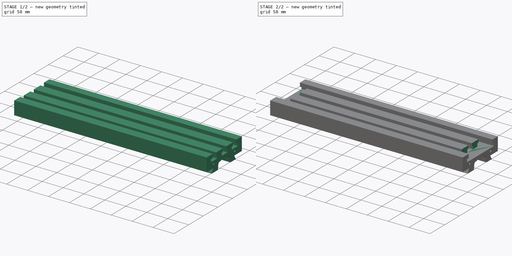
[diagram: build sequence overview — one tinted view per stage of 2, left to right]
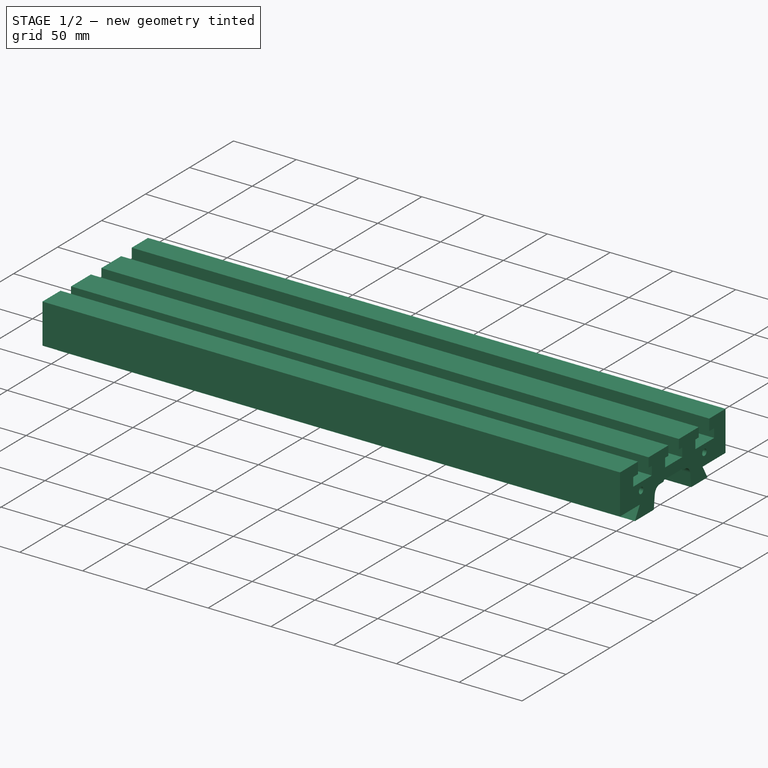
[diagram: stage 1 of 2 — iso view after this stage's code; geometry added in this stage tinted green]
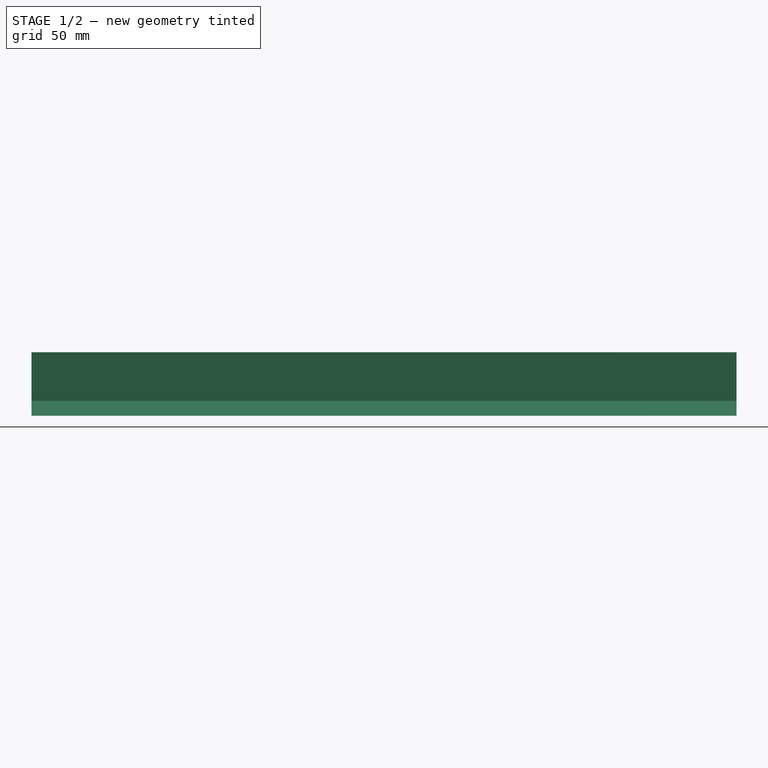
[diagram: stage 1 of 2 — front view after this stage's code; geometry added in this stage tinted green]
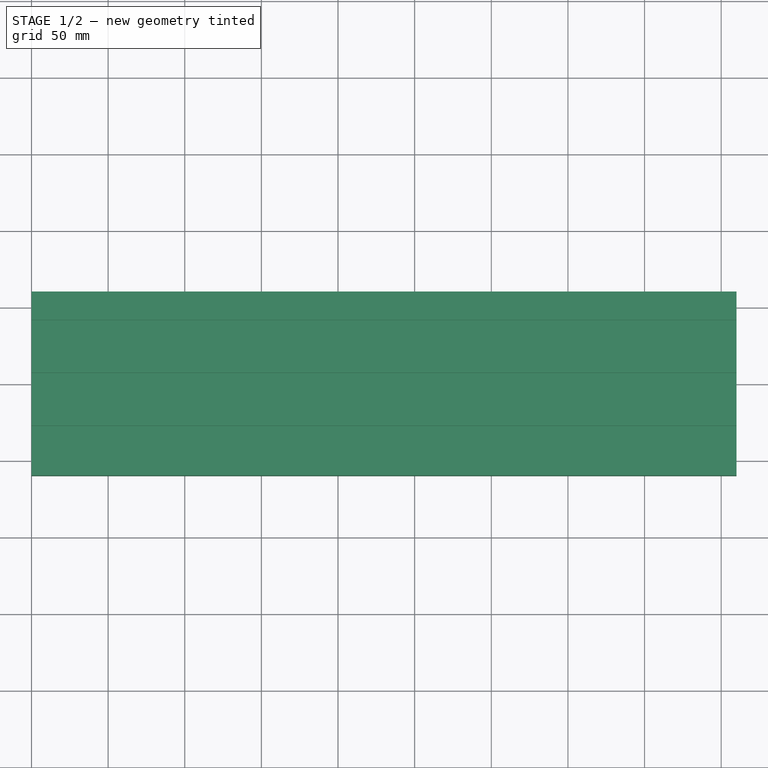
[diagram: stage 1 of 2 — top view after this stage's code; geometry added in this stage tinted green]
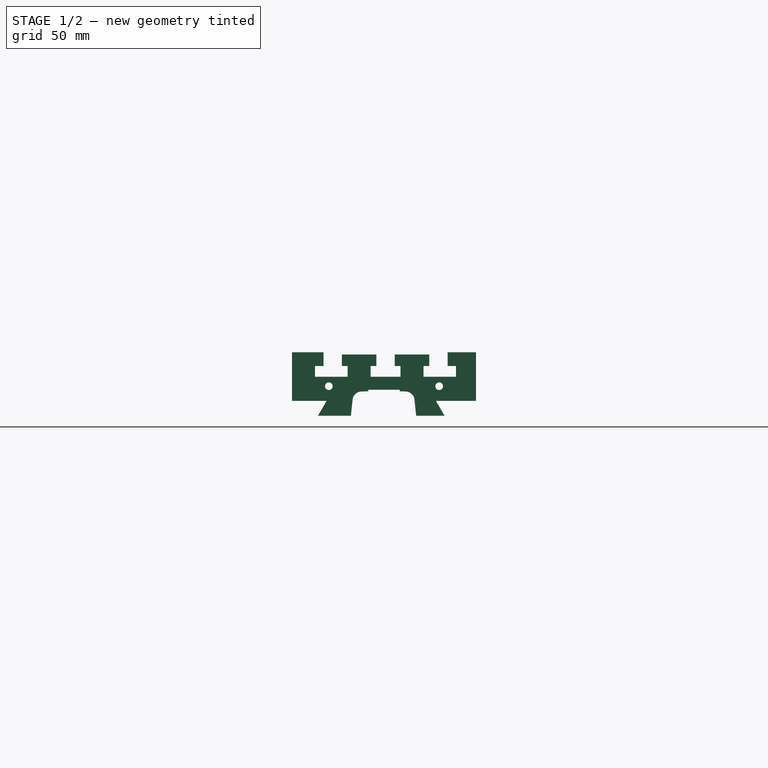
[diagram: stage 1 of 2 — right view after this stage's code; geometry added in this stage tinted green]
FCSTD DOCUMENT  (FreeCAD 0.16R5470 (Git))
Label: Bed-132
License: CreativeCommons Attribution-ShareAlike
LicenseURL: http://creativecommons.org/licenses/by-sa/4.0/
objects: Sketcher::SketchObject×2, PartDesign::Pad×1, PartDesign::Pocket×1
note: 6 computed .brp shape members not serialized (recipe doc carries the construction recipe); baked Part::Feature solids carry a one-line shape summary decoded from their .brp

FEATURE [Sketcher::SketchObject] Sketch
  Placement = pos=(0,0,0) rot=(0.57735,0.57735,0.57735;2.0944rad)
  sketch-geometry (44):
    g0: LineSegment StartX=-43.1 StartY=0 StartZ=0 EndX=-37.4593 EndY=9.77 EndZ=0
    g1: LineSegment StartX=-37.4593 StartY=9.77 StartZ=0 EndX=-60 EndY=9.77 EndZ=0
    g2: LineSegment StartX=-60 StartY=9.77 StartZ=0 EndX=-60 EndY=41.5 EndZ=0
    g3: LineSegment StartX=-60 StartY=41.5 StartZ=0 EndX=-39.5 EndY=41.5 EndZ=0
    g4: LineSegment StartX=-39.5 StartY=41.5 StartZ=0 EndX=-39.5 EndY=32.5 EndZ=0
    g5: LineSegment StartX=-39.5 StartY=32.5 StartZ=0 EndX=-45 EndY=32.5 EndZ=0
    g6: LineSegment StartX=-45 StartY=32.5 StartZ=0 EndX=-45 EndY=25.5 EndZ=0
    g7: LineSegment StartX=-45 StartY=25.5 StartZ=0 EndX=-23.75 EndY=25.5 EndZ=0
    g8: LineSegment StartX=-23.75 StartY=25.5 StartZ=0 EndX=-23.75 EndY=32.5 EndZ=0
    g9: LineSegment StartX=-23.75 StartY=32.5 StartZ=0 EndX=-27.5 EndY=32.5 EndZ=0
    g10: LineSegment StartX=-27.5 StartY=32.5 StartZ=0 EndX=-27.5 EndY=40 EndZ=0
    g11: LineSegment StartX=-27.5 StartY=40 StartZ=0 EndX=-5 EndY=40 EndZ=0
    g12: LineSegment StartX=-5 StartY=40 StartZ=0 EndX=-5 EndY=32.5 EndZ=0
    g13: LineSegment StartX=-5 StartY=32.5 StartZ=0 EndX=-8.75 EndY=32.5 EndZ=0
    g14: LineSegment StartX=-8.75 StartY=32.5 StartZ=0 EndX=-8.75 EndY=25.5 EndZ=0
    g15: LineSegment StartX=-8.75 StartY=25.5 StartZ=0 EndX=10.75 EndY=25.5 EndZ=0
    g16: LineSegment StartX=10.75 StartY=25.5 StartZ=0 EndX=10.75 EndY=32.5 EndZ=0
    g17: LineSegment StartX=7 StartY=32.5 StartZ=0 EndX=7 EndY=40 EndZ=0
    g18: LineSegment StartX=7 StartY=40 StartZ=0 EndX=29.5 EndY=40 EndZ=0
    g19: LineSegment StartX=29.5 StartY=40 StartZ=0 EndX=29.5 EndY=32.5 EndZ=0
    g20: LineSegment StartX=29.5 StartY=32.5 StartZ=0 EndX=25.75 EndY=32.5 EndZ=0
    g21: LineSegment StartX=25.75 StartY=32.5 StartZ=0 EndX=25.75 EndY=25.5 EndZ=0
    g22: LineSegment StartX=25.75 StartY=25.5 StartZ=0 EndX=47 EndY=25.5 EndZ=0
    g23: LineSegment StartX=47 StartY=25.5 StartZ=0 EndX=47 EndY=32.5 EndZ=0
    g24: LineSegment StartX=47 StartY=32.5 StartZ=0 EndX=41.5 EndY=32.5 EndZ=0
    g25: LineSegment StartX=41.5 StartY=32.5 StartZ=0 EndX=41.5 EndY=41.5 EndZ=0
    g26: LineSegment StartX=41.5 StartY=41.5 StartZ=0 EndX=60 EndY=41.5 EndZ=0
    g27: LineSegment StartX=60 StartY=41.5 StartZ=0 EndX=60 EndY=9.77 EndZ=0
    g28: LineSegment StartX=60 StartY=9.77 StartZ=0 EndX=33.8593 EndY=9.77 EndZ=0
    g29: LineSegment StartX=33.8593 StartY=9.77 StartZ=0 EndX=39.5 EndY=0 EndZ=0
    g30: LineSegment StartX=39.5 StartY=0 StartZ=0 EndX=21 EndY=0 EndZ=0
    g31: LineSegment StartX=10.25 StartY=16 StartZ=0 EndX=10.25 EndY=17 EndZ=0
    g32: LineSegment StartX=10.25 StartY=17 StartZ=0 EndX=-10.25 EndY=17 EndZ=0
    g33: LineSegment StartX=-10.25 StartY=17 StartZ=0 EndX=-10.25 EndY=16 EndZ=0
    g34: LineSegment StartX=-21.6 StartY=0 StartZ=0 EndX=-43.1 EndY=0 EndZ=0
    g35: LineSegment StartX=7 StartY=32.5 StartZ=0 EndX=10.75 EndY=32.5 EndZ=0
    g36: LineSegment StartX=-21.6 StartY=0 StartZ=0 EndX=-20.4439 EndY=11 EndZ=0
    g37: ArcOfCircle CenterX=-14.5516 CenterY=9.8679 CenterZ=0 NormalX=0 NormalY=0 NormalZ=1 Radius=6 StartAngle=1.5205 EndAngle=2.95177
    g38: LineSegment StartX=-14.25 StartY=15.8603 StartZ=0 EndX=-10.25 EndY=16 EndZ=0
    g39: LineSegment StartX=10.25 StartY=16 StartZ=0 EndX=14.25 EndY=15.8603 EndZ=0
    g40: ArcOfCircle CenterX=13.9517 CenterY=9.86774 CenterZ=0 NormalX=0 NormalY=0 NormalZ=1 Radius=6 StartAngle=0.189849 EndAngle=1.52105
    g41: LineSegment StartX=19.8439 StartY=11 StartZ=0 EndX=21 EndY=0 EndZ=0
    g42: Circle CenterX=36 CenterY=19.3 CenterZ=0 NormalX=0 NormalY=0 NormalZ=1 Radius=2.5
    g43: Circle CenterX=-36 CenterY=19.3 CenterZ=0 NormalX=0 NormalY=0 NormalZ=1 Radius=2.5
  constraints (133):
    c: Coincident(g0,g1)
    c: Horizontal(g1)
    c: Coincident(g1,g2)
    c: Vertical(g2)
    c: Coincident(g2,g3)
    c: Horizontal(g3)
    c: Coincident(g3,g4)
    c: Coincident(g4,g5)
    c: Horizontal(g5)
    c: Coincident(g5,g6)
    c: Vertical(g6)
    c: Coincident(g6,g7)
    c: Horizontal(g7)
    c: Coincident(g7,g8)
    c: Vertical(g8)
    c: Coincident(g8,g9)
    c: Horizontal(g9)
    c: Coincident(g9,g10)
    c: Vertical(g10)
    c: Coincident(g10,g11)
    c: Horizontal(g11)
    c: Coincident(g11,g12)
    c: Vertical(g12)
    c: Coincident(g12,g13)
    c: Horizontal(g13)
    c: Coincident(g13,g14)
    c: Vertical(g14)
    c: Coincident(g14,g15)
    c: Horizontal(g15)
    c: Coincident(g15,g16)
    c: Vertical(g16)
    c: Vertical(g17)
    c: Coincident(g17,g18)
    c: Horizontal(g18)
    c: Coincident(g18,g19)
    c: Vertical(g19)
    c: Coincident(g19,g20)
    c: Coincident(g20,g21)
    c: Vertical(g21)
    c: Coincident(g21,g22)
    c: Horizontal(g22)
    c: Coincident(g22,g23)
    c: Vertical(g23)
    c: Coincident(g23,g24)
    c: Coincident(g24,g25)
    c: Vertical(g25)
    c: Coincident(g25,g26)
    c: Horizontal(g26)
    c: Coincident(g26,g27)
    c: Vertical(g27)
    c: Coincident(g27,g28)
    c: Horizontal(g28)
    c: Coincident(g28,g29)
    c: Coincident(g29,g30)
    c: PointOnObject(g30,g-1)
    c: Horizontal(g30)
    c: Vertical(g31)
    c: Coincident(g31,g32)
    c: Horizontal(g32)
    c: Coincident(g32,g33)
    c: PointOnObject(g34,g-1)
    c: Horizontal(g34)
    c: Coincident(g0,g34)
    c: DistanceX(g2,g26) = 120
    c: Symmetric(g2,g26,g-2)
    c: DistanceY(g1,g0) = -9.77
    c: Vertical(g33)
    c: DistanceY(g0,g2) = 41.5
    c: DistanceY(g29,g27) = 9.77
    c: Vertical(g4)
    c: Horizontal(g20)
    c: Horizontal(g24)
    c: Equal(g6,g8)
    c: Equal(g14,g16)
    c: Equal(g21,g23)
    c: Equal(g5,g24)
    c: DistanceY(g29,g18) = 40
    c: Equal(g7,g22)
    c: Coincident(g35,g17)
    c: Coincident(g16,g35)
    c: Horizontal(g35)
    c: DistanceX(g1,g6) = 15
    c: DistanceY(g24,g25) = 9
    c: DistanceX(g10,g11) = 22.5
    c: Equal(g4,g25)
    c: Equal(g10,g12)
    c: Equal(g17,g19)
    c: Equal(g9,g13)
    c: DistanceX(g17,g18) = 22.5
    c: DistanceX(g11,g17) = 12
    c: Equal(g8,g14)
    c: Equal(g16,g21)
    c: DistanceX(g18,g25) = 12
    c: DistanceY(g22,g23) = 7
    c: Angle(g1,g0) = 1.0472
    c: Angle(g29,g28) = 1.0472
    c: Equal(g35,g20)
    c: DistanceX(g2,g3) = 20.5
    c: DistanceX(g8,g13) = 15
    c: Symmetric(g32,g31,g-2)
    c: DistanceX(g3,g10) = 12
    c: DistanceX(g0,g29) = 82.6
    c: DistanceX(g0,g34) = 21.5
    c: DistanceX(g32,g31) = 20.5
    c: DistanceY(g31,g31) = 1
    c: Equal(g31,g33)
    c: DistanceY(g32,g34) = -17
    c: DistanceY(g34,g10) = 40
    c: Coincident(g38,g33)
    c: Coincident(g38,g37)
    c: Coincident(g36,g37)
    c: Coincident(g34,g36)
    c: Radius(g37) = 6
    c: Angle(g36,g34) = 1.67552
    c: DistanceY(g36,g34) = -11
    c: Angle(g33,g38) = 1.6057
    c: DistanceX(g37,g33) = 4
    c: Equal(g37,g40)
    c: Coincident(g31,g39)
    c: Coincident(g39,g40)
    c: Coincident(g40,g41)
    c: Coincident(g30,g41)
    c: Equal(g41,g36)
    c: Angle(g30,g41) = 1.67552
    c: Equal(g39,g38)
    c: Angle(g39,g31) = 1.6057
    c: DistanceX(g1,g0) = 16.9
    c: DistanceX(g30,g29) = 18.5
    c: DistanceX(g43,g42) = 72
    c: Equal(g43,g42)
    c: DistanceY(g43,g0) = -19.3
    c: Radius(g43) = 2.5
    c: Symmetric(g43,g42,g-2)
FEATURE [PartDesign::Pad] Pad
  Length = 460
  Length2 = 100
  Placement = pos=(0,0,0) rot=(0.57735,0.57735,0.57735;2.0944rad)
  Sketch = -> Sketch
  Type = 0
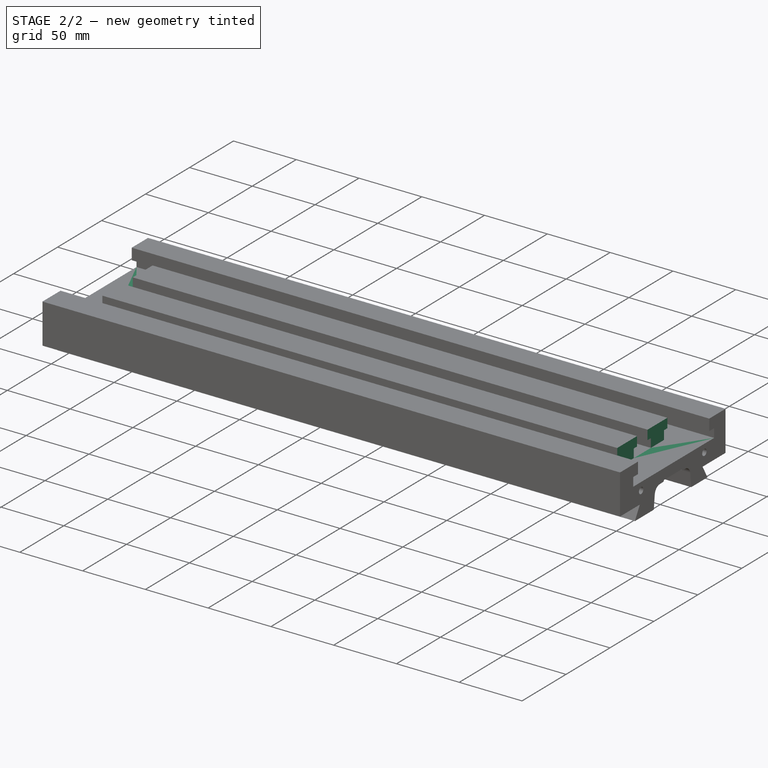
[diagram: stage 2 of 2 — iso view after this stage's code; geometry added in this stage tinted green]
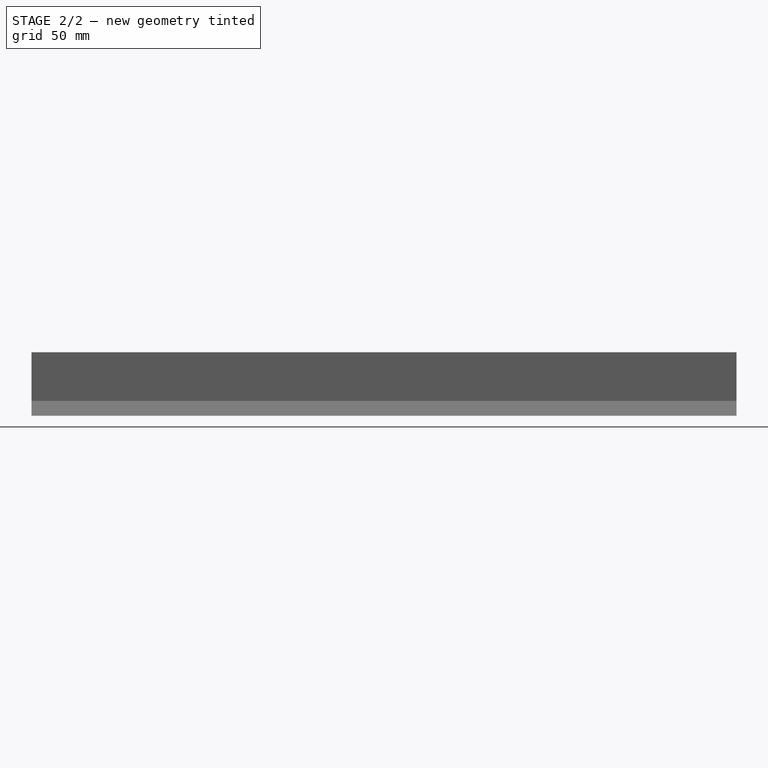
[diagram: stage 2 of 2 — front view after this stage's code; geometry added in this stage tinted green]
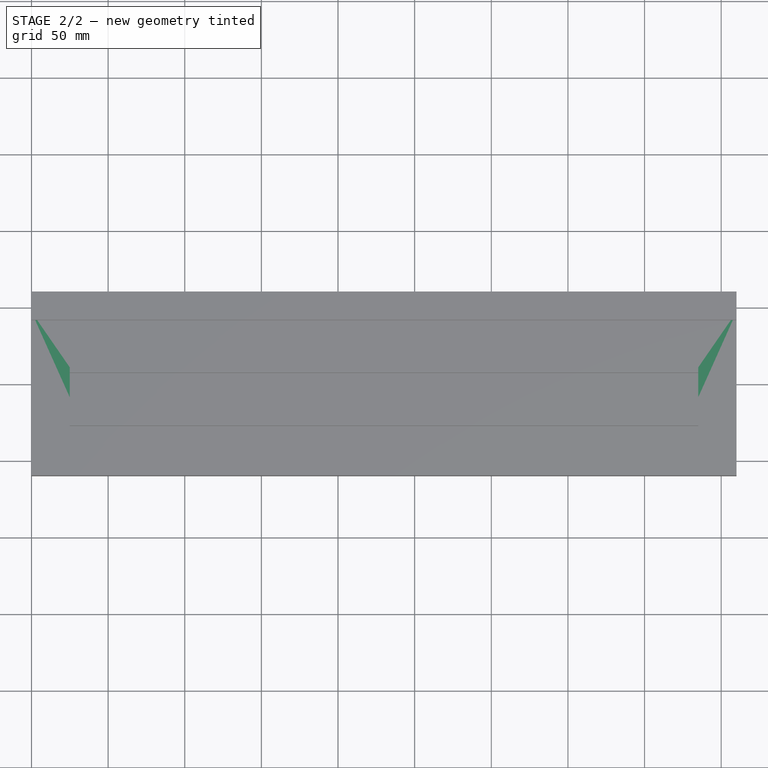
[diagram: stage 2 of 2 — top view after this stage's code; geometry added in this stage tinted green]
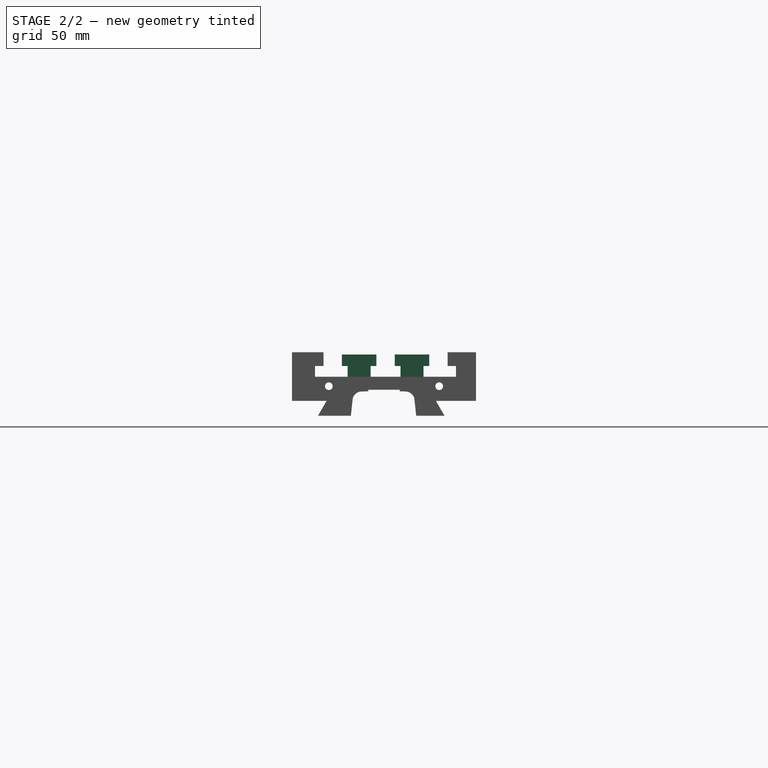
[diagram: stage 2 of 2 — right view after this stage's code; geometry added in this stage tinted green]
FEATURE [Sketcher::SketchObject] Sketch001
  Placement = pos=(0,0,40) rot=(0,0,-1;1.5708rad)
  Support = -> Pad [Face21]
  sketch-geometry (8):
    g0: LineSegment StartX=-35 StartY=25 StartZ=0 EndX=35 EndY=25 EndZ=0
    g1: LineSegment StartX=35 StartY=25 StartZ=0 EndX=35 EndY=0 EndZ=0
    g2: LineSegment StartX=35 StartY=0 StartZ=0 EndX=-35 EndY=0 EndZ=0
    g3: LineSegment StartX=-35 StartY=0 StartZ=0 EndX=-35 EndY=25 EndZ=0
    g4: LineSegment StartX=-35 StartY=460 StartZ=0 EndX=35 EndY=460 EndZ=0
    g5: LineSegment StartX=35 StartY=460 StartZ=0 EndX=35 EndY=435 EndZ=0
    g6: LineSegment StartX=35 StartY=435 StartZ=0 EndX=-35 EndY=435 EndZ=0
    g7: LineSegment StartX=-35 StartY=435 StartZ=0 EndX=-35 EndY=460 EndZ=0
  constraints (24):
    c: Coincident(g0,g1)
    c: Coincident(g1,g2)
    c: Coincident(g2,g3)
    c: Coincident(g3,g0)
    c: Horizontal(g0)
    c: Horizontal(g2)
    c: Vertical(g1)
    c: Vertical(g3)
    c: Coincident(g4,g5)
    c: Coincident(g5,g6)
    c: Coincident(g6,g7)
    c: Coincident(g7,g4)
    c: Horizontal(g4)
    c: Horizontal(g6)
    c: Vertical(g5)
    c: Vertical(g7)
    c: Equal(g1,g7)
    c: Equal(g0,g4)
    c: Symmetric(g0,g0,g-2)
    c: Symmetric(g5,g6,g-2)
    c: DistanceY(g-1,g1) = 0
    c: DistanceY(g4,g1) = -460
    c: DistanceX(g4,g4) = 70
    c: DistanceY(g4,g6) = -25
FEATURE [PartDesign::Pocket] Pocket
  Length = 14.5
  Placement = pos=(0,0,0) rot=(0.57735,0.57735,0.57735;2.0944rad)
  Sketch = -> Sketch001
  Type = 0
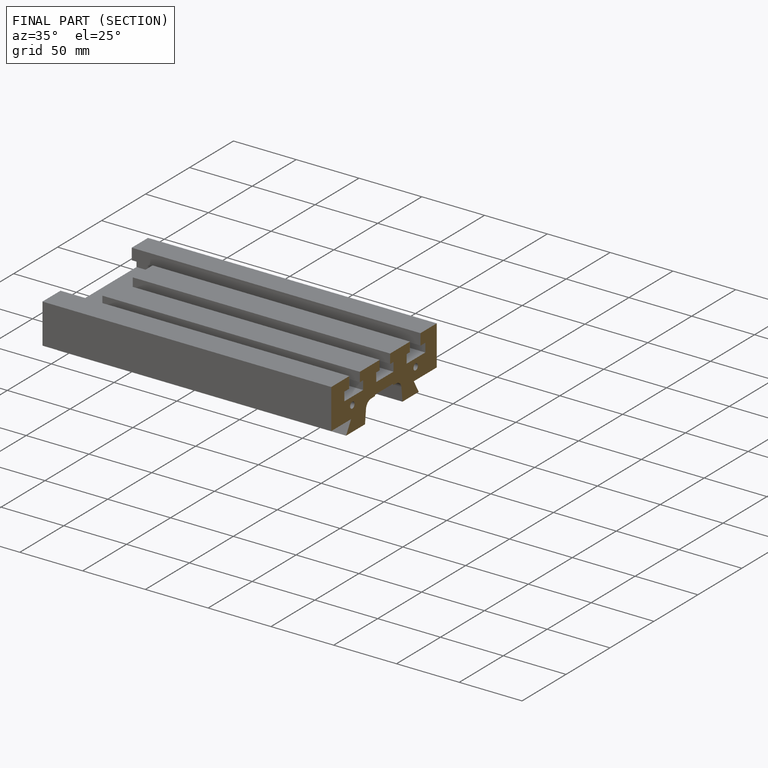
[diagram: finished part — half-section view (interior)]
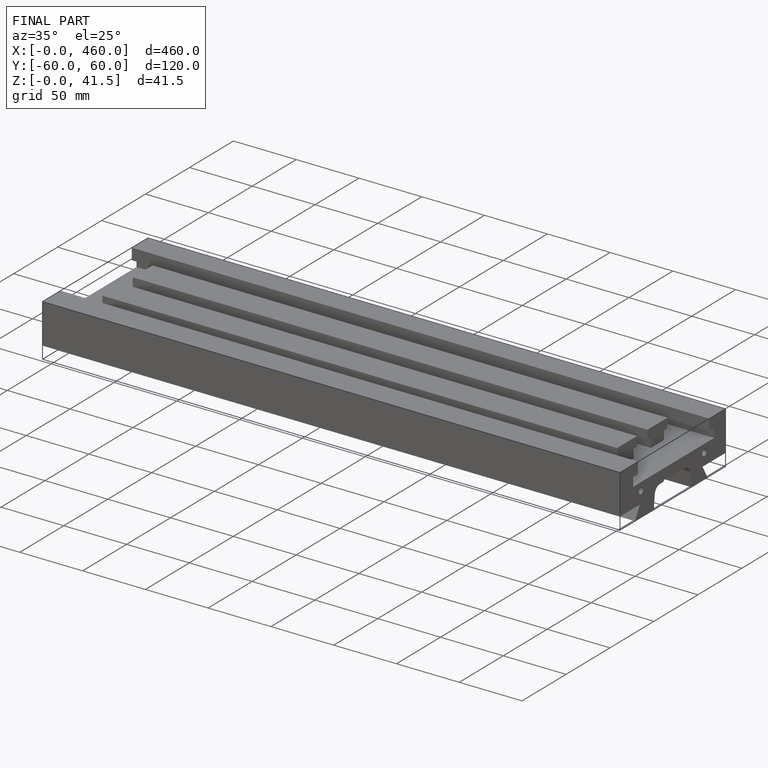
[diagram: finished part — iso view with bounding-box wireframe]
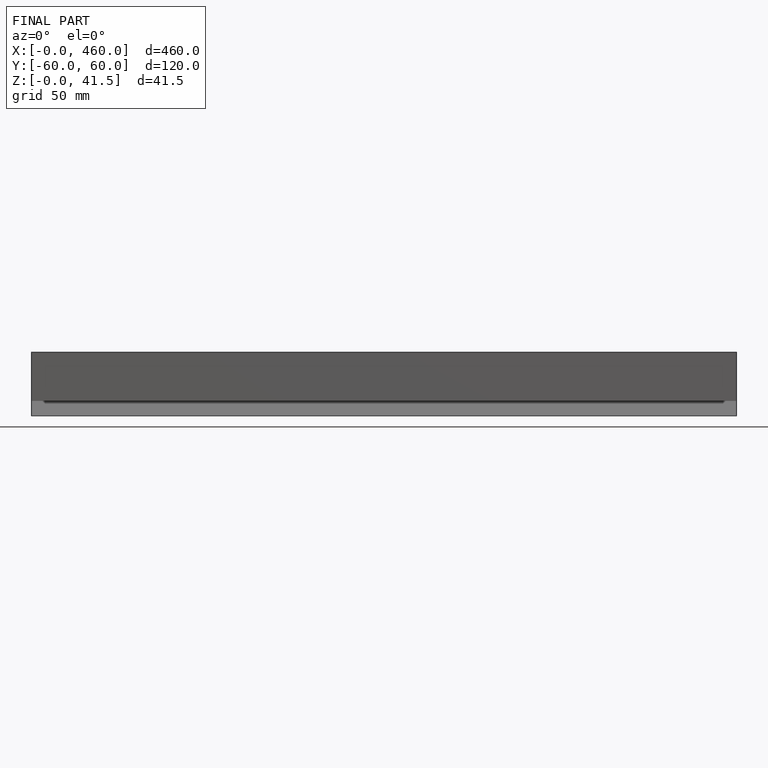
[diagram: finished part — front view with bounding-box wireframe]
